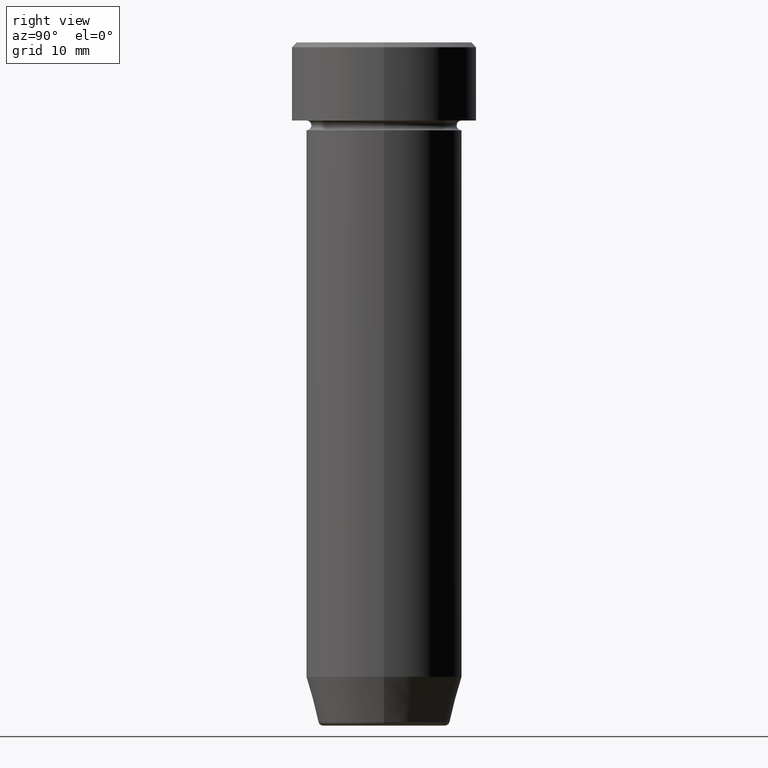
[diagram: clean part render]
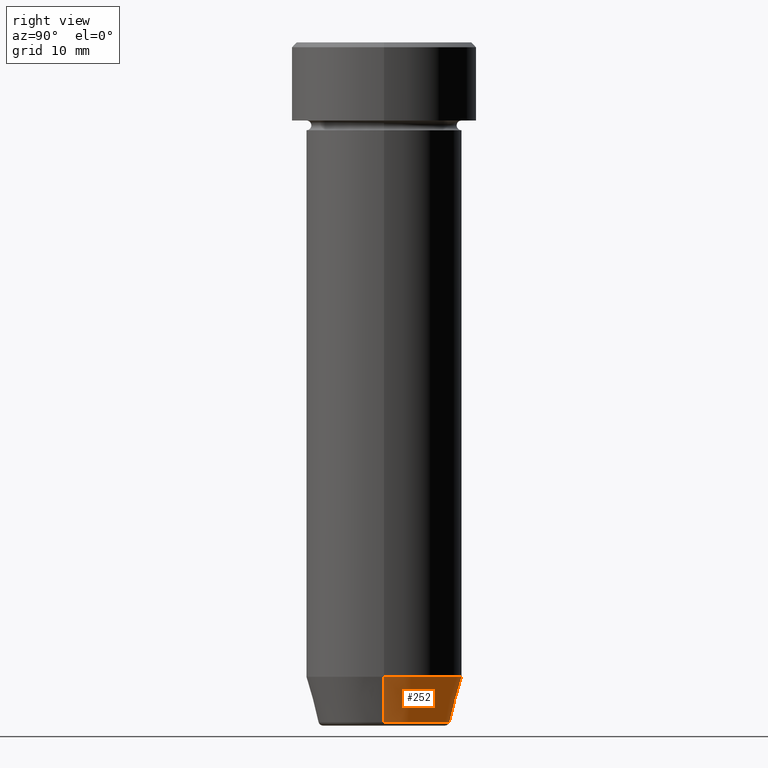
[diagram: same view with one face highlighted and labeled with its STEP entity id]
A machine part, right view. The second image highlights one B-rep face of the part: STEP entity #252.
In plain terms, the highlighted conical surface has half-angle 15 deg.
Its self-contained STEP definition (entity closure, byte-faithful):
#15 = ORIENTED_EDGE ( 'NONE', *, *, #545, .T. ) ;
#18 = CIRCLE ( 'NONE', #490, 6.759553456999436882 ) ;
#39 = DIRECTION ( 'NONE',  ( -0.2588190451025214611, 3.169619151431774186E-17, 0.9659258262890679791 ) ) ;
#45 = VERTEX_POINT ( 'NONE', #570 ) ;
#95 = DIRECTION ( 'NONE',  ( -0.000000000000000000, -0.000000000000000000, 1.000000000000000000 ) ) ;
#100 = LINE ( 'NONE', #500, #204 ) ;
#108 = DIRECTION ( 'NONE',  ( -1.000000000000000000, 0.000000000000000000, 0.000000000000000000 ) ) ;
#124 = CARTESIAN_POINT ( 'NONE',  ( 8.000000000000000000, 0.000000000000000000, -65.00000000000000000 ) ) ;
#138 = CARTESIAN_POINT ( 'NONE',  ( 0.000000000000000000, 0.000000000000000000, -70.00000000000000000 ) ) ;
#143 = FACE_OUTER_BOUND ( 'NONE', #534, .T. ) ;
#171 = VERTEX_POINT ( 'NONE', #124 ) ;
#177 = ORIENTED_EDGE ( 'NONE', *, *, #442, .T. ) ;
#191 = DIRECTION ( 'NONE',  ( 1.000000000000000000, 0.000000000000000000, 0.000000000000000000 ) ) ;
#204 = VECTOR ( 'NONE', #39, 1000.000000000000114 ) ;
#214 = AXIS2_PLACEMENT_3D ( 'NONE', #319, #410, #191 ) ;
#217 = ORIENTED_EDGE ( 'NONE', *, *, #355, .F. ) ;
#252 = ADVANCED_FACE ( 'NONE', ( #143 ), #584, .T. ) ;
#256 = VERTEX_POINT ( 'NONE', #379 ) ;
#279 = DIRECTION ( 'NONE',  ( 1.000000000000000000, 0.000000000000000000, 0.000000000000000000 ) ) ;
#289 = LINE ( 'NONE', #486, #318 ) ;
#293 = VERTEX_POINT ( 'NONE', #439 ) ;
#296 = AXIS2_PLACEMENT_3D ( 'NONE', #138, #95, #279 ) ;
#318 = VECTOR ( 'NONE', #483, 1000.000000000000114 ) ;
#319 = CARTESIAN_POINT ( 'NONE',  ( 0.000000000000000000, 0.000000000000000000, -65.00000000000000000 ) ) ;
#330 = DIRECTION ( 'NONE',  ( -0.000000000000000000, -0.000000000000000000, 1.000000000000000000 ) ) ;
#355 = EDGE_CURVE ( 'NONE', #171, #256, #440, .T. ) ;
#379 = CARTESIAN_POINT ( 'NONE',  ( -8.000000000000000000, 9.797174393178825657E-16, -65.00000000000000000 ) ) ;
#396 = ORIENTED_EDGE ( 'NONE', *, *, #454, .F. ) ;
#410 = DIRECTION ( 'NONE',  ( -0.000000000000000000, -0.000000000000000000, 1.000000000000000000 ) ) ;
#439 = CARTESIAN_POINT ( 'NONE',  ( 6.759553456999437770, 0.000000000000000000, -69.62940952255127058 ) ) ;
#440 = CIRCLE ( 'NONE', #214, 8.000000000000000000 ) ;
#442 = EDGE_CURVE ( 'NONE', #293, #45, #18, .T. ) ;
#454 = EDGE_CURVE ( 'NONE', #293, #171, #289, .T. ) ;
#483 = DIRECTION ( 'NONE',  ( 0.2588190451025214611, 0.000000000000000000, 0.9659258262890679791 ) ) ;
#486 = CARTESIAN_POINT ( 'NONE',  ( 6.660254037844381081, 0.000000000000000000, -70.00000000000000000 ) ) ;
#490 = AXIS2_PLACEMENT_3D ( 'NONE', #529, #330, #108 ) ;
#500 = CARTESIAN_POINT ( 'NONE',  ( -6.660254037844381081, 8.156458788954356817E-16, -70.00000000000000000 ) ) ;
#529 = CARTESIAN_POINT ( 'NONE',  ( 0.000000000000000000, 0.000000000000000000, -69.62940952255127058 ) ) ;
#534 = EDGE_LOOP ( 'NONE', ( #177, #15, #217, #396 ) ) ;
#545 = EDGE_CURVE ( 'NONE', #45, #256, #100, .T. ) ;
#570 = CARTESIAN_POINT ( 'NONE',  ( -6.759553456999437770, 9.037619948979306213E-16, -69.62940952255127058 ) ) ;
#584 = CONICAL_SURFACE ( 'NONE', #296, 6.660254037844381081, 0.2617993877991502405 ) ;